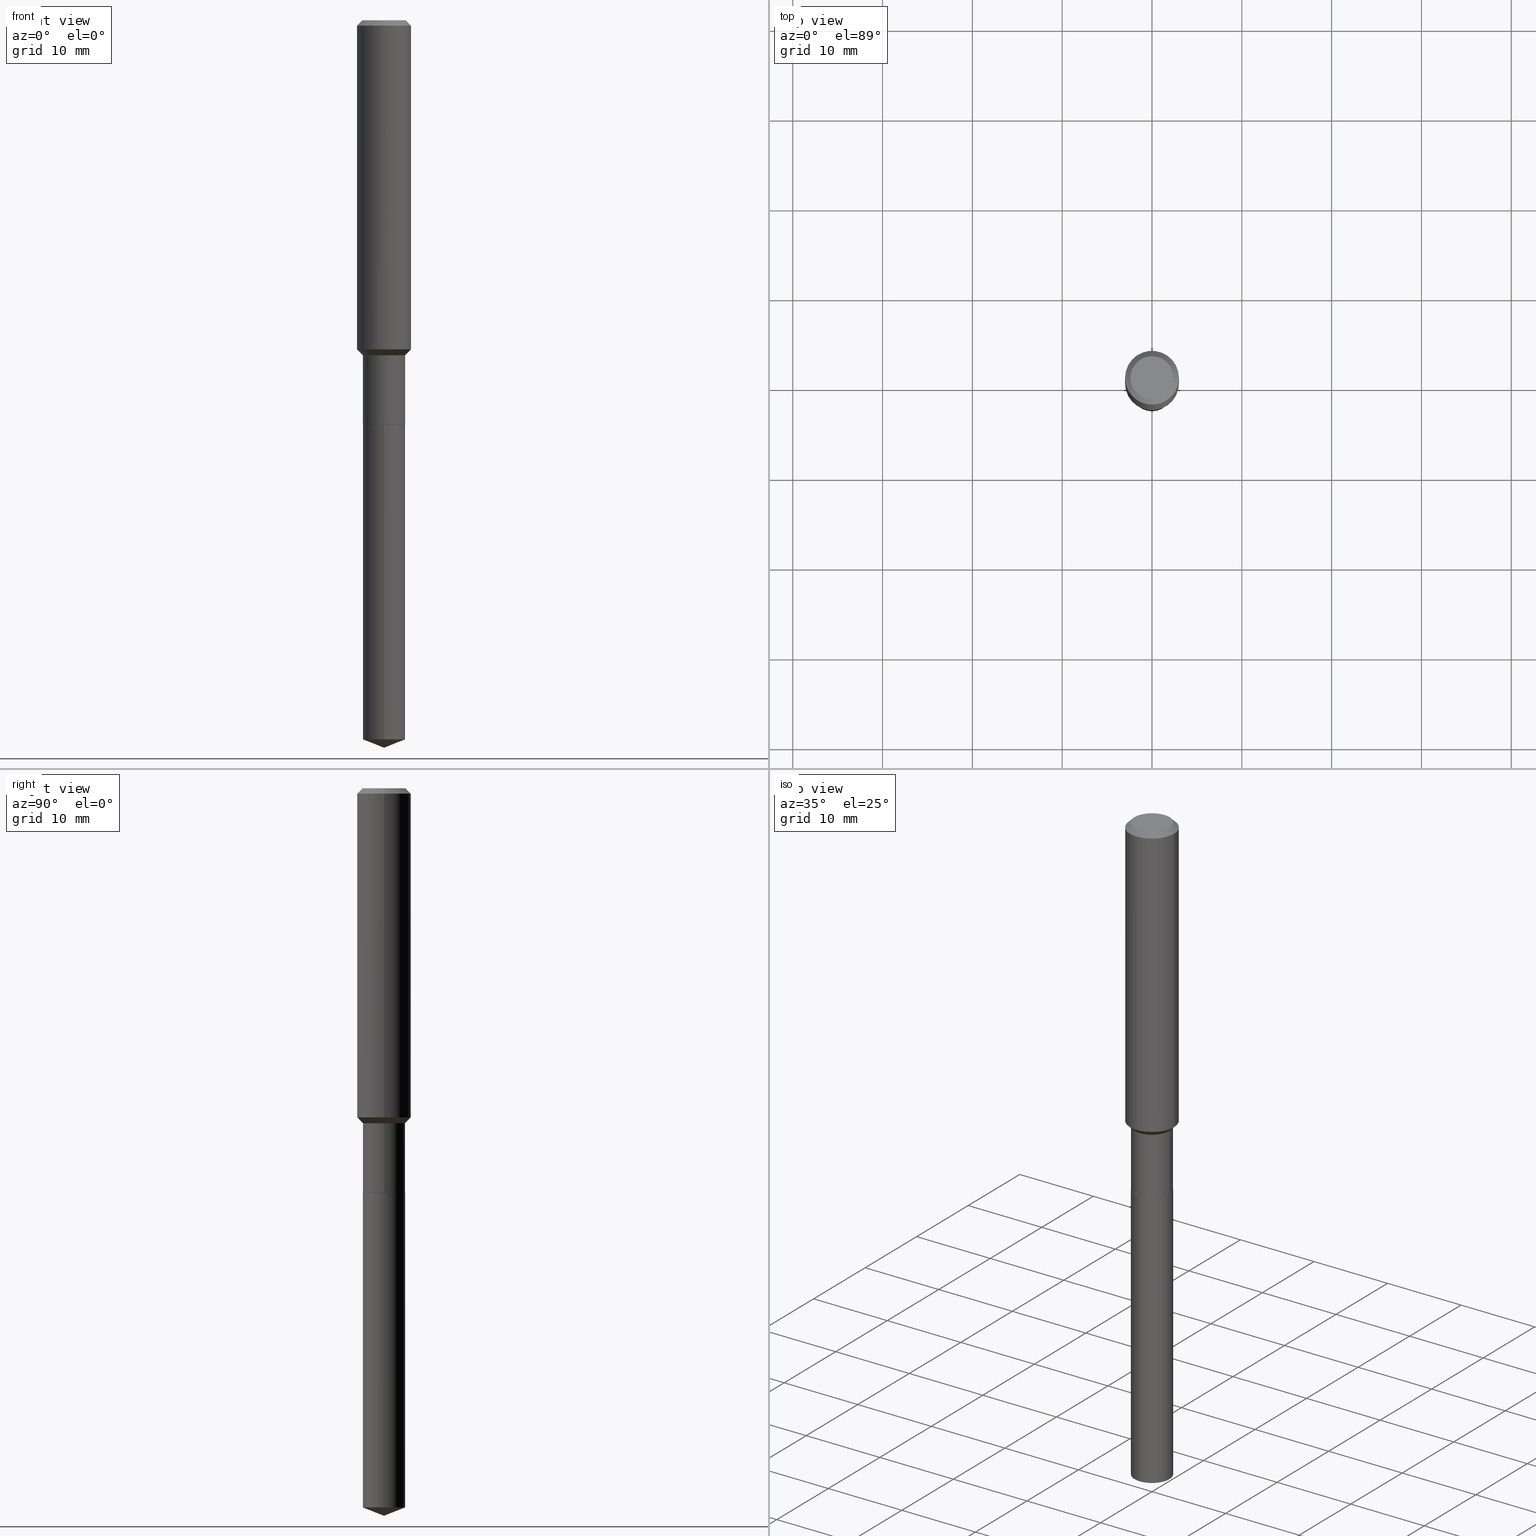
[diagram: canonical four-view strip — front | top / right | iso, engineering-drawing reading convention]
A machine part, canonical four-view strip (front | top / right | iso — engineering-drawing reading convention). The complete STEP part file that produces these views, byte-faithful:
ISO-10303-21;
HEADER;
FILE_DESCRIPTION (( 'STEP AP203' ),
    '1' );
FILE_NAME ('66623.STEP',
    '2024-04-25T02:15:34',
    ( '' ),
    ( '' ),
    'SwSTEP 2.0',
    'SolidWorks 2023',
    '' );
FILE_SCHEMA (( 'CONFIG_CONTROL_DESIGN' ));
ENDSEC;

DATA;
#1 = PERSON_AND_ORGANIZATION ( #298, #234 ) ;
#2 = CARTESIAN_POINT ( 'NONE',  ( 7.798695523167827716E-29, -1.113419722778666995E-14, -3.189000000000000501 ) ) ;
#3 = ADVANCED_FACE ( 'NONE', ( #284 ), #454, .T. ) ;
#4 = VECTOR ( 'NONE', #142, 39.37007874015748143 ) ;
#5 = AXIS2_PLACEMENT_3D ( 'NONE', #275, #430, #56 ) ;
#6 = CARTESIAN_POINT ( 'NONE',  ( 4.332637083918208108E-29, -6.185857488028402659E-15, -1.771700000000000719 ) ) ;
#7 = APPROVAL ( #489, 'UNSPECIFIED' ) ;
#8 = CYLINDRICAL_SURFACE ( 'NONE', #447, 0.09249999999999999889 ) ;
#9 = VERTEX_POINT ( 'NONE', #168 ) ;
#10 = DIRECTION ( 'NONE',  ( 1.000000000000000000, -6.982962677686266711E-15, 4.876176775795935232E-29 ) ) ;
#11 = VERTEX_POINT ( 'NONE', #357 ) ;
#12 = CIRCLE ( 'NONE', #258, 0.1181000000000001632 ) ;
#13 = CIRCLE ( 'NONE', #98, 0.09249999999999999889 ) ;
#14 = EDGE_CURVE ( 'NONE', #247, #245, #276, .T. ) ;
#15 = FACE_OUTER_BOUND ( 'NONE', #237, .T. ) ;
#16 = ORIENTED_EDGE ( 'NONE', *, *, #472, .F. ) ;
#17 = CC_DESIGN_PERSON_AND_ORGANIZATION_ASSIGNMENT ( #290, #257, ( #439 ) ) ;
#18 = CARTESIAN_POINT ( 'NONE',  ( 0.000000000000000000, 0.000000000000000000, 0.000000000000000000 ) ) ;
#19 = ORIENTED_EDGE ( 'NONE', *, *, #466, .F. ) ;
#20 = DIRECTION ( 'NONE',  ( -2.445468806185136597E-29, 3.491481338843145583E-15, 1.000000000000000000 ) ) ;
#21 = ORIENTED_EDGE ( 'NONE', *, *, #362, .F. ) ;
#22 = EDGE_CURVE ( 'NONE', #174, #342, #475, .T. ) ;
#23 = AXIS2_PLACEMENT_3D ( 'NONE', #299, #149, #186 ) ;
#24 = EDGE_LOOP ( 'NONE', ( #481, #322, #471, #55 ) ) ;
#25 = FACE_OUTER_BOUND ( 'NONE', #24, .T. ) ;
#26 = ORIENTED_EDGE ( 'NONE', *, *, #195, .F. ) ;
#27 = FACE_OUTER_BOUND ( 'NONE', #248, .T. ) ;
#28 = EDGE_LOOP ( 'NONE', ( #278, #467, #170, #58 ) ) ;
#29 = VECTOR ( 'NONE', #478, 39.37007874015748143 ) ;
#30 = ORIENTED_EDGE ( 'NONE', *, *, #150, .T. ) ;
#31 = DATE_AND_TIME ( #285, #328 ) ;
#32 = CARTESIAN_POINT ( 'NONE',  ( 4.332637083918206987E-29, -6.185857488028401870E-15, -1.771700000000000497 ) ) ;
#33 = PERSON_AND_ORGANIZATION ( #298, #234 ) ;
#34 = DIRECTION ( 'NONE',  ( -6.982962677686265922E-15, -1.000000000000000000, 2.953349182339743999E-15 ) ) ;
#35 = EDGE_CURVE ( 'NONE', #395, #247, #12, .T. ) ;
#36 = DATE_AND_TIME ( #219, #228 ) ;
#37 = DIRECTION ( 'NONE',  ( -6.982962677686265922E-15, -1.000000000000000000, 2.953349182339743999E-15 ) ) ;
#38 = VECTOR ( 'NONE', #199, 39.37007874015748143 ) ;
#39 = DATE_AND_TIME ( #73, #336 ) ;
#40 = PLANE ( 'NONE',  #376 ) ;
#41 = DESIGN_CONTEXT ( 'detailed design', #111, 'design' ) ;
#42 = CARTESIAN_POINT ( 'NONE',  ( -0.09249999999999998501, 6.572520305780925654E-16, -4.550014958485786769E-30 ) ) ;
#43 = DIRECTION ( 'NONE',  ( -6.982962677686265922E-15, -1.000000000000000000, 2.953349182339743999E-15 ) ) ;
#44 = VECTOR ( 'NONE', #151, 39.37007874015748143 ) ;
#45 = AXIS2_PLACEMENT_3D ( 'NONE', #272, #114, #87 ) ;
#46 = DIRECTION ( 'NONE',  ( -6.497071151882107214E-15, -0.9304175679820226863, 0.3665012267243020760 ) ) ;
#47 = ORIENTED_EDGE ( 'NONE', *, *, #57, .T. ) ;
#48 = DIRECTION ( 'NONE',  ( 1.000000000000000000, -6.982962677686269866E-15, 0.000000000000000000 ) ) ;
#49 = ORIENTED_EDGE ( 'NONE', *, *, #486, .F. ) ;
#50 = EDGE_CURVE ( 'NONE', #395, #297, #104, .T. ) ;
#51 = CARTESIAN_POINT ( 'NONE',  ( 0.09199999999999999845, -6.828290054375539638E-15, -1.771700000000000719 ) ) ;
#52 = VECTOR ( 'NONE', #295, 39.37007874015748143 ) ;
#53 = AXIS2_PLACEMENT_3D ( 'NONE', #203, #443, #101 ) ;
#54 = CYLINDRICAL_SURFACE ( 'NONE', #77, 0.1181000000000000799 ) ;
#55 = ORIENTED_EDGE ( 'NONE', *, *, #466, .T. ) ;
#56 = DIRECTION ( 'NONE',  ( -1.000000000000000000, 6.982962677686266711E-15, 0.000000000000000000 ) ) ;
#57 = EDGE_CURVE ( 'NONE', #469, #395, #95, .T. ) ;
#58 = ORIENTED_EDGE ( 'NONE', *, *, #262, .F. ) ;
#59 =( NAMED_UNIT ( * ) SI_UNIT ( $, .STERADIAN. ) SOLID_ANGLE_UNIT ( ) );
#60 = ORIENTED_EDGE ( 'NONE', *, *, #92, .F. ) ;
#61 = CIRCLE ( 'NONE', #409, 0.09249999999999999889 ) ;
#62 = LOCAL_TIME ( 22, 15, 34.00000000000000000, #370 ) ;
#63 = DIRECTION ( 'NONE',  ( -2.445468806185136597E-29, 3.491481338843145583E-15, 1.000000000000000000 ) ) ;
#64 = ORIENTED_EDGE ( 'NONE', *, *, #433, .T. ) ;
#65 = DIRECTION ( 'NONE',  ( -2.445468806185136597E-29, 3.491481338843145583E-15, 1.000000000000000000 ) ) ;
#66 = ORIENTED_EDGE ( 'NONE', *, *, #224, .T. ) ;
#67 = ORIENTED_EDGE ( 'NONE', *, *, #35, .F. ) ;
#68 = DATE_AND_TIME ( #294, #62 ) ;
#69 = VECTOR ( 'NONE', #135, 39.37007874015748143 ) ;
#70 = CARTESIAN_POINT ( 'NONE',  ( -0.1181000000000000799, 8.391509709326788873E-16, -5.809262341591047988E-30 ) ) ;
#71 = EDGE_CURVE ( 'NONE', #120, #9, #61, .T. ) ;
#72 = DIRECTION ( 'NONE',  ( 1.000000000000000000, -6.982962677686266711E-15, 0.000000000000000000 ) ) ;
#73 = CALENDAR_DATE ( 2024, 24, 4 ) ;
#74 = DIRECTION ( 'NONE',  ( -2.445468806185136597E-29, 3.491481338843145583E-15, 1.000000000000000000 ) ) ;
#75 = DIRECTION ( 'NONE',  ( 1.000000000000000000, -6.982962677686265133E-15, 0.000000000000000000 ) ) ;
#76 = CLOSED_SHELL ( 'NONE', ( #398, #200, #372, #181, #301 ) ) ;
#77 = AXIS2_PLACEMENT_3D ( 'NONE', #309, #458, #119 ) ;
#78 = EDGE_CURVE ( 'NONE', #245, #297, #155, .T. ) ;
#79 = DIRECTION ( 'NONE',  ( -2.445468806185136597E-29, 3.491481338843145583E-15, 1.000000000000000000 ) ) ;
#80 = FACE_OUTER_BOUND ( 'NONE', #384, .T. ) ;
#81 = DIRECTION ( 'NONE',  ( -2.445498752953222356E-29, 3.491438453366782686E-15, 1.000000000000000000 ) ) ;
#82 = ORIENTED_EDGE ( 'NONE', *, *, #340, .T. ) ;
#83 = AXIS2_PLACEMENT_3D ( 'NONE', #392, #167, #312 ) ;
#84 = LINE ( 'NONE', #229, #133 ) ;
#85 = EDGE_CURVE ( 'NONE', #214, #131, #343, .T. ) ;
#86 = ORIENTED_EDGE ( 'NONE', *, *, #472, .T. ) ;
#87 = DIRECTION ( 'NONE',  ( 1.000000000000000000, -6.982962677686267499E-15, 4.875432709231658792E-29 ) ) ;
#88 = ORIENTED_EDGE ( 'NONE', *, *, #50, .F. ) ;
#89 = FACE_OUTER_BOUND ( 'NONE', #316, .T. ) ;
#90 = ORIENTED_EDGE ( 'NONE', *, *, #332, .T. ) ;
#91 = AXIS2_PLACEMENT_3D ( 'NONE', #483, #413, #490 ) ;
#92 = EDGE_CURVE ( 'NONE', #417, #469, #217, .T. ) ;
#93 = CARTESIAN_POINT ( 'NONE',  ( -0.09447999999999998066, 7.009847083995354710E-16, -1.928573779297727792E-17 ) ) ;
#94 = ORIENTED_EDGE ( 'NONE', *, *, #340, .F. ) ;
#95 = LINE ( 'NONE', #391, #38 ) ;
#96 = EDGE_LOOP ( 'NONE', ( #422, #86, #339, #67 ) ) ;
#97 = CONICAL_SURFACE ( 'NONE', #139, 0.1180999999999999966, 0.7853981633974460586 ) ;
#98 = AXIS2_PLACEMENT_3D ( 'NONE', #240, #65, #206 ) ;
#99 = ORIENTED_EDGE ( 'NONE', *, *, #187, .F. ) ;
#100 = EDGE_CURVE ( 'NONE', #431, #245, #141, .T. ) ;
#101 = DIRECTION ( 'NONE',  ( 1.000000000000000000, -6.982962677686267499E-15, 4.875432709231658792E-29 ) ) ;
#102 = DIRECTION ( 'NONE',  ( 1.000000000000000000, -6.982962677686263555E-15, 0.000000000000000000 ) ) ;
#103 = APPROVAL_ROLE ( '' ) ;
#104 = LINE ( 'NONE', #70, #164 ) ;
#105 = EDGE_CURVE ( 'NONE', #417, #346, #201, .T. ) ;
#106 = AXIS2_PLACEMENT_3D ( 'NONE', #116, #303, #337 ) ;
#107 = CARTESIAN_POINT ( 'NONE',  ( -6.459240476859363031E-16, -0.09250000000000618838, -1.771700000000000053 ) ) ;
#108 = DIRECTION ( 'NONE',  ( -6.982962677686265922E-15, -1.000000000000000000, 3.498627837350058654E-15 ) ) ;
#109 = MANIFOLD_SOLID_BREP ( 'Body-Move/Copy2[1]', #76 ) ;
#110 = CARTESIAN_POINT ( 'NONE',  ( 3.590681848121637088E-29, -5.126542049823392484E-15, -1.468300000000000605 ) ) ;
#111 = APPLICATION_CONTEXT ( 'configuration controlled 3d designs of mechanical parts and assemblies' ) ;
#112 = DIRECTION ( 'NONE',  ( -2.445468806185136597E-29, 3.491481338843145583E-15, 1.000000000000000000 ) ) ;
#113 = DIRECTION ( 'NONE',  ( -2.445498752953222356E-29, 3.491438453366782686E-15, 1.000000000000000000 ) ) ;
#114 = DIRECTION ( 'NONE',  ( -2.445468806185136597E-29, 3.491481338843145583E-15, 1.000000000000000000 ) ) ;
#115 = ORIENTED_EDGE ( 'NONE', *, *, #105, .T. ) ;
#116 = CARTESIAN_POINT ( 'NONE',  ( 4.332637083918206987E-29, -6.185857488028401870E-15, -1.771700000000000497 ) ) ;
#117 = EDGE_LOOP ( 'NONE', ( #60, #115, #304, #16 ) ) ;
#118 =( GEOMETRIC_REPRESENTATION_CONTEXT ( 3 ) GLOBAL_UNCERTAINTY_ASSIGNED_CONTEXT ( ( #261 ) ) GLOBAL_UNIT_ASSIGNED_CONTEXT ( ( #281, #129, #59 ) ) REPRESENTATION_CONTEXT ( 'NONE', 'WORKASPACE' ) );
#119 = DIRECTION ( 'NONE',  ( 1.000000000000000000, -6.982962677686266711E-15, 4.876176775795936353E-29 ) ) ;
#120 = VERTEX_POINT ( 'NONE', #107 ) ;
#121 = CYLINDRICAL_SURFACE ( 'NONE', #345, 0.1181000000000000799 ) ;
#122 = CARTESIAN_POINT ( 'NONE',  ( 4.332637083918206987E-29, -6.185857488028401870E-15, -1.771700000000000497 ) ) ;
#123 = CIRCLE ( 'NONE', #401, 0.09249999999999997113 ) ;
#124 = CIRCLE ( 'NONE', #45, 0.09447999999999998066 ) ;
#125 = LENGTH_MEASURE_WITH_UNIT ( LENGTH_MEASURE( 0.02539999999999999897 ), #389 );
#126 = ORIENTED_EDGE ( 'NONE', *, *, #253, .F. ) ;
#127 = DIRECTION ( 'NONE',  ( 0.000000000000000000, 0.000000000000000000, 1.000000000000000000 ) ) ;
#128 = ORIENTED_EDGE ( 'NONE', *, *, #85, .F. ) ;
#129 =( NAMED_UNIT ( * ) PLANE_ANGLE_UNIT ( ) SI_UNIT ( $, .RADIAN. ) );
#130 = ADVANCED_FACE ( 'NONE', ( #286 ), #97, .T. ) ;
#131 = VERTEX_POINT ( 'NONE', #176 ) ;
#132 = AXIS2_PLACEMENT_3D ( 'NONE', #177, #180, #72 ) ;
#133 = VECTOR ( 'NONE', #230, 39.37007874015748143 ) ;
#134 = PERSON_AND_ORGANIZATION ( #298, #234 ) ;
#135 = DIRECTION ( 'NONE',  ( 6.611014441532053178E-15, 0.9304175679820252398, 0.3665012267242954702 ) ) ;
#136 = ORIENTED_EDGE ( 'NONE', *, *, #22, .T. ) ;
#137 = COORDINATED_UNIVERSAL_TIME_OFFSET ( 5, 0, .BEHIND. ) ;
#138 = CARTESIAN_POINT ( 'NONE',  ( 6.589800474479064171E-30, -1.144674345582729073E-14, -1.771700000000000719 ) ) ;
#139 = AXIS2_PLACEMENT_3D ( 'NONE', #445, #252, #223 ) ;
#140 = VECTOR ( 'NONE', #338, 39.37007874015748143 ) ;
#141 = LINE ( 'NONE', #334, #485 ) ;
#142 = DIRECTION ( 'NONE',  ( -2.445468806185136877E-29, 3.491481338843145188E-15, 1.000000000000000000 ) ) ;
#143 = APPROVAL_DATE_TIME ( #68, #420 ) ;
#144 = PRODUCT_DEFINITION ( 'UNKNOWN', '', #439, #41 ) ;
#145 = CARTESIAN_POINT ( 'NONE',  ( 7.709536515616339787E-29, -1.100705664617363653E-14, -3.152563281005618112 ) ) ;
#146 = APPROVAL_ROLE ( '' ) ;
#147 = CYLINDRICAL_SURFACE ( 'NONE', #387, 0.09249999999999999889 ) ;
#148 = AXIS2_PLACEMENT_3D ( 'NONE', #236, #127, #277 ) ;
#149 = DIRECTION ( 'NONE',  ( -2.445498752953222356E-29, 3.491438453366782686E-15, 1.000000000000000000 ) ) ;
#150 = EDGE_CURVE ( 'NONE', #342, #191, #220, .T. ) ;
#151 = DIRECTION ( 'NONE',  ( 0.7071067811864267805, -2.468850131080992517E-15, 0.7071067811866682540 ) ) ;
#152 = ORIENTED_EDGE ( 'NONE', *, *, #348, .F. ) ;
#153 = PLANE ( 'NONE',  #106 ) ;
#154 = ORIENTED_EDGE ( 'NONE', *, *, #195, .T. ) ;
#155 = CIRCLE ( 'NONE', #132, 0.1180999999999999966 ) ;
#156 = CARTESIAN_POINT ( 'NONE',  ( -8.848083599624647937E-28, 1.263239336174787439E-13, 36.18107874015748138 ) ) ;
#157 = CC_DESIGN_PERSON_AND_ORGANIZATION_ASSIGNMENT ( #134, #480, ( #315 ) ) ;
#158 = EDGE_LOOP ( 'NONE', ( #66, #47, #99, #400 ) ) ;
#159 = CARTESIAN_POINT ( 'NONE',  ( 0.1180999999999999966, -9.071566814582237199E-16, -0.02362000000000014088 ) ) ;
#160 = CC_DESIGN_PERSON_AND_ORGANIZATION_ASSIGNMENT ( #33, #367, ( #144 ) ) ;
#161 = ORIENTED_EDGE ( 'NONE', *, *, #100, .T. ) ;
#162 = DIRECTION ( 'NONE',  ( -2.445468806185136597E-29, 3.491481338843145583E-15, 1.000000000000000000 ) ) ;
#163 = DIRECTION ( 'NONE',  ( -2.445468806185136877E-29, 3.491481338843145188E-15, 1.000000000000000000 ) ) ;
#164 = VECTOR ( 'NONE', #163, 39.37007874015748143 ) ;
#165 = ORIENTED_EDGE ( 'NONE', *, *, #14, .T. ) ;
#166 = ADVANCED_FACE ( 'NONE', ( #291 ), #365, .F. ) ;
#167 = DIRECTION ( 'NONE',  ( -2.445468806185136597E-29, 3.491481338843145583E-15, 1.000000000000000000 ) ) ;
#168 = CARTESIAN_POINT ( 'NONE',  ( 6.572520305781699724E-16, 0.09249999999999382327, -1.771700000000000719 ) ) ;
#169 = CARTESIAN_POINT ( 'NONE',  ( 0.09447999999999998066, -7.704367267948738690E-16, -1.928573779296752193E-17 ) ) ;
#170 = ORIENTED_EDGE ( 'NONE', *, *, #433, .F. ) ;
#171 = CIRCLE ( 'NONE', #91, 0.09249999999999999889 ) ;
#172 = CIRCLE ( 'NONE', #83, 0.09249999999999997113 ) ;
#173 = APPLICATION_CONTEXT ( 'configuration controlled 3d designs of mechanical parts and assemblies' ) ;
#174 = VERTEX_POINT ( 'NONE', #2 ) ;
#175 = APPROVAL_DATE_TIME ( #31, #7 ) ;
#176 = CARTESIAN_POINT ( 'NONE',  ( -0.09199999999999999845, -5.529508943954998706E-15, -1.771700000000000719 ) ) ;
#177 = CARTESIAN_POINT ( 'NONE',  ( 5.776197320209327532E-31, -8.246878922347559293E-17, -0.02362000000000014088 ) ) ;
#178 = SECURITY_CLASSIFICATION_LEVEL ( 'unclassified' ) ;
#179 = VECTOR ( 'NONE', #347, 39.37007874015748143 ) ;
#180 = DIRECTION ( 'NONE',  ( -2.445468806185136597E-29, 3.491481338843145583E-15, 1.000000000000000000 ) ) ;
#181 = ADVANCED_FACE ( 'NONE', ( #449 ), #147, .T. ) ;
#182 = COORDINATED_UNIVERSAL_TIME_OFFSET ( 5, 0, .BEHIND. ) ;
#183 = FACE_OUTER_BOUND ( 'NONE', #350, .T. ) ;
#184 = CARTESIAN_POINT ( 'NONE',  ( 4.331414349515115307E-29, -6.184111747358981944E-15, -1.771200000000000552 ) ) ;
#185 = CIRCLE ( 'NONE', #23, 0.09249999999999999889 ) ;
#186 = DIRECTION ( 'NONE',  ( -6.982962677686265922E-15, -1.000000000000000000, 5.906698364679487997E-15 ) ) ;
#187 = EDGE_CURVE ( 'NONE', #247, #395, #226, .T. ) ;
#188 = CARTESIAN_POINT ( 'NONE',  ( -0.1181000000000001632, -4.198009156616327782E-15, -1.442700000000000538 ) ) ;
#189 = ORIENTED_EDGE ( 'NONE', *, *, #311, .F. ) ;
#190 = LINE ( 'NONE', #268, #419 ) ;
#191 = VERTEX_POINT ( 'NONE', #371 ) ;
#192 = CARTESIAN_POINT ( 'NONE',  ( -0.1180999999999999966, -1.720663487453561930E-15, -0.02362000000000014088 ) ) ;
#193 = ORIENTED_EDGE ( 'NONE', *, *, #253, .T. ) ;
#194 = VECTOR ( 'NONE', #46, 39.37007874015748143 ) ;
#195 = EDGE_CURVE ( 'NONE', #9, #120, #171, .T. ) ;
#196 = CARTESIAN_POINT ( 'NONE',  ( -0.1180999999999999966, 7.422191030112725094E-16, -0.02362000000000014088 ) ) ;
#197 = CARTESIAN_POINT ( 'NONE',  ( 3.590681848121637088E-29, -5.126542049823392484E-15, -1.468300000000000605 ) ) ;
#198 = ORIENTED_EDGE ( 'NONE', *, *, #50, .T. ) ;
#199 = DIRECTION ( 'NONE',  ( -0.7071067811865484609, 7.493145998870357316E-15, 0.7071067811865465735 ) ) ;
#200 = ADVANCED_FACE ( 'NONE', ( #80 ), #327, .T. ) ;
#201 = CIRCLE ( 'NONE', #302, 0.09249999999999999889 ) ;
#202 = CONICAL_SURFACE ( 'NONE', #314, 0.09199999999999999845, 0.7853981633972775267 ) ;
#203 = CARTESIAN_POINT ( 'NONE',  ( 4.716267017698007905E-46, -6.733579360998555036E-32, -1.928573779297252010E-17 ) ) ;
#204 = EDGE_LOOP ( 'NONE', ( #88, #310, #165, #19 ) ) ;
#205 = CC_DESIGN_DATE_AND_TIME_ASSIGNMENT ( #452, #448, ( #221 ) ) ;
#206 = DIRECTION ( 'NONE',  ( 1.000000000000000000, -6.982962677686265133E-15, 0.000000000000000000 ) ) ;
#207 = ORIENTED_EDGE ( 'NONE', *, *, #324, .F. ) ;
#208 = ADVANCED_FACE ( 'NONE', ( #484 ), #426, .T. ) ;
#209 = CARTESIAN_POINT ( 'NONE',  ( -0.09249999999999999889, -4.998074868013093170E-15, -1.771200000000000552 ) ) ;
#210 = ORIENTED_EDGE ( 'NONE', *, *, #71, .T. ) ;
#211 = AXIS2_PLACEMENT_3D ( 'NONE', #254, #74, #368 ) ;
#212 = CONICAL_SURFACE ( 'NONE', #274, 99.94676754583841216, 1.195550537616114184 ) ;
#213 = PERSON_AND_ORGANIZATION ( #298, #234 ) ;
#214 = VERTEX_POINT ( 'NONE', #330 ) ;
#215 = DIRECTION ( 'NONE',  ( 1.000000000000000000, -6.982962677686269866E-15, 0.000000000000000000 ) ) ;
#216 = SHAPE_DEFINITION_REPRESENTATION ( #415, #381 ) ;
#217 = LINE ( 'NONE', #42, #52 ) ;
#218 = EDGE_CURVE ( 'NONE', #346, #11, #488, .T. ) ;
#219 = CALENDAR_DATE ( 2024, 24, 4 ) ;
#220 = CIRCLE ( 'NONE', #446, 0.09249999999999999889 ) ;
#221 = SECURITY_CLASSIFICATION ( '', '', #178 ) ;
#222 = DIRECTION ( 'NONE',  ( -2.438088387897960049E-29, 3.491481338843145188E-15, 1.000000000000000000 ) ) ;
#223 = DIRECTION ( 'NONE',  ( -1.000000000000000000, 6.982962677686266711E-15, 0.000000000000000000 ) ) ;
#224 = EDGE_CURVE ( 'NONE', #11, #469, #123, .T. ) ;
#225 = DIRECTION ( 'NONE',  ( -2.445498752953222356E-29, 3.491438453366782686E-15, 1.000000000000000000 ) ) ;
#226 = CIRCLE ( 'NONE', #386, 0.1181000000000001632 ) ;
#227 = DIRECTION ( 'NONE',  ( 1.000000000000000000, -6.982962677686266711E-15, 4.876176775795936353E-29 ) ) ;
#228 = LOCAL_TIME ( 22, 15, 34.00000000000000000, #182 ) ;
#229 = CARTESIAN_POINT ( 'NONE',  ( -0.09199999999999999845, -5.532158171129110696E-15, -1.771700000000000719 ) ) ;
#230 = DIRECTION ( 'NONE',  ( -0.7071067811864267805, 7.493145998869918709E-15, 0.7071067811866682540 ) ) ;
#231 = ORIENTED_EDGE ( 'NONE', *, *, #362, .T. ) ;
#232 = ADVANCED_FACE ( 'NONE', ( #183 ), #40, .F. ) ;
#233 = CARTESIAN_POINT ( 'NONE',  ( 0.09249999999999997113, -5.772466097509371681E-15, -1.468300000000000605 ) ) ;
#234 = ORGANIZATION ( 'UNSPECIFIED', 'UNSPECIFIED', '' ) ;
#235 = APPROVAL_PERSON_ORGANIZATION ( #364, #482, #292 ) ;
#236 = CARTESIAN_POINT ( 'NONE',  ( 0.000000000000000000, 0.000000000000000000, 0.000000000000000000 ) ) ;
#237 = EDGE_LOOP ( 'NONE', ( #438, #231, #359 ) ) ;
#238 = ADVANCED_FACE ( 'NONE', ( #465 ), #264, .T. ) ;
#239 = CARTESIAN_POINT ( 'NONE',  ( 7.798696453656895021E-29, -1.113419722778667310E-14, -3.189000000000000501 ) ) ;
#240 = CARTESIAN_POINT ( 'NONE',  ( 4.331414349515115307E-29, -6.184111747358981944E-15, -1.771200000000000552 ) ) ;
#241 = CC_DESIGN_PERSON_AND_ORGANIZATION_ASSIGNMENT ( #411, #251, ( #221 ) ) ;
#242 = EDGE_LOOP ( 'NONE', ( #193, #390, #425, #393 ) ) ;
#243 = CC_DESIGN_APPROVAL ( #420, ( #439 ) ) ;
#244 = FACE_OUTER_BOUND ( 'NONE', #117, .T. ) ;
#245 = VERTEX_POINT ( 'NONE', #159 ) ;
#246 = CARTESIAN_POINT ( 'NONE',  ( 6.572520305781358542E-16, 0.09249999999999382327, -1.771700000000000719 ) ) ;
#247 = VERTEX_POINT ( 'NONE', #423 ) ;
#248 = EDGE_LOOP ( 'NONE', ( #152, #429, #307, #363 ) ) ;
#249 = AXIS2_PLACEMENT_3D ( 'NONE', #382, #341, #10 ) ;
#250 = VECTOR ( 'NONE', #470, 39.37007874015748143 ) ;
#251 = PERSON_AND_ORGANIZATION_ROLE ( 'classification_officer' ) ;
#252 = DIRECTION ( 'NONE',  ( 2.445468806185136597E-29, -3.491481338843145583E-15, -1.000000000000000000 ) ) ;
#253 = EDGE_CURVE ( 'NONE', #191, #342, #185, .T. ) ;
#254 = CARTESIAN_POINT ( 'NONE',  ( 4.332637083918208108E-29, -6.185857488028402659E-15, -1.771700000000000719 ) ) ;
#255 = APPROVAL_STATUS ( 'not_yet_approved' ) ;
#256 = DIRECTION ( 'NONE',  ( -2.445468806185136597E-29, 3.491481338843145583E-15, 1.000000000000000000 ) ) ;
#257 = PERSON_AND_ORGANIZATION_ROLE ( 'creator' ) ;
#258 = AXIS2_PLACEMENT_3D ( 'NONE', #282, #474, #102 ) ;
#259 = CIRCLE ( 'NONE', #53, 0.09447999999999998066 ) ;
#260 = DIRECTION ( 'NONE',  ( 2.438088387897960049E-29, -3.491481338843145188E-15, -1.000000000000000000 ) ) ;
#261 = UNCERTAINTY_MEASURE_WITH_UNIT (LENGTH_MEASURE( 1.000000000000000082E-05 ), #281, 'distance_accuracy_value', 'NONE');
#262 = EDGE_CURVE ( 'NONE', #214, #346, #296, .T. ) ;
#263 = DIRECTION ( 'NONE',  ( 1.000000000000000000, -6.982962677686263555E-15, 0.000000000000000000 ) ) ;
#264 = CYLINDRICAL_SURFACE ( 'NONE', #249, 0.09249999999999998501 ) ;
#265 = ORIENTED_EDGE ( 'NONE', *, *, #218, .F. ) ;
#266 = DIRECTION ( 'NONE',  ( -2.445468806185136597E-29, 3.491481338843145583E-15, 1.000000000000000000 ) ) ;
#267 = ORIENTED_EDGE ( 'NONE', *, *, #92, .T. ) ;
#268 = CARTESIAN_POINT ( 'NONE',  ( -6.459240476859363031E-16, -0.09250000000000618838, -1.771700000000000053 ) ) ;
#269 = EDGE_LOOP ( 'NONE', ( #279, #198, #460, #320 ) ) ;
#270 = DIRECTION ( 'NONE',  ( -2.445468806185136597E-29, 3.491481338843145583E-15, 1.000000000000000000 ) ) ;
#271 = VERTEX_POINT ( 'NONE', #93 ) ;
#272 = CARTESIAN_POINT ( 'NONE',  ( 4.716267017698007905E-46, -6.733579360998555036E-32, -1.928573779297252010E-17 ) ) ;
#273 = AXIS2_PLACEMENT_3D ( 'NONE', #326, #225, #108 ) ;
#274 = AXIS2_PLACEMENT_3D ( 'NONE', #156, #81, #306 ) ;
#275 = CARTESIAN_POINT ( 'NONE',  ( 5.776197320209327532E-31, -8.246878922347559293E-17, -0.02362000000000014088 ) ) ;
#276 = LINE ( 'NONE', #441, #29 ) ;
#277 = DIRECTION ( 'NONE',  ( 1.000000000000000000, 0.000000000000000000, 0.000000000000000000 ) ) ;
#278 = ORIENTED_EDGE ( 'NONE', *, *, #85, .T. ) ;
#279 = ORIENTED_EDGE ( 'NONE', *, *, #187, .T. ) ;
#280 = CC_DESIGN_APPROVAL ( #7, ( #221 ) ) ;
#281 =( CONVERSION_BASED_UNIT ( 'INCH', #125 ) LENGTH_UNIT ( ) NAMED_UNIT ( #308 ) );
#282 = CARTESIAN_POINT ( 'NONE',  ( 3.528077846683297760E-29, -5.037160127549007557E-15, -1.442700000000000538 ) ) ;
#283 = DIRECTION ( 'NONE',  ( 1.000000000000000000, -6.982962677686266711E-15, 4.876176775795935232E-29 ) ) ;
#284 = FACE_OUTER_BOUND ( 'NONE', #158, .T. ) ;
#285 = CALENDAR_DATE ( 2024, 24, 4 ) ;
#286 = FACE_OUTER_BOUND ( 'NONE', #352, .T. ) ;
#287 = CIRCLE ( 'NONE', #418, 0.09199999999999999845 ) ;
#288 = APPLICATION_PROTOCOL_DEFINITION ( 'international standard', 'config_control_design', 1994, #111 ) ;
#289 = DIRECTION ( 'NONE',  ( -2.445468806185136597E-29, 3.491481338843145583E-15, 1.000000000000000000 ) ) ;
#290 = PERSON_AND_ORGANIZATION ( #298, #234 ) ;
#291 = FACE_OUTER_BOUND ( 'NONE', #434, .T. ) ;
#292 = APPROVAL_ROLE ( '' ) ;
#293 = CARTESIAN_POINT ( 'NONE',  ( 0.09249999999999998501, -6.459240476859795918E-16, 4.510463517611239347E-30 ) ) ;
#294 = CALENDAR_DATE ( 2024, 24, 4 ) ;
#295 = DIRECTION ( 'NONE',  ( -2.445468806185136877E-29, 3.491481338843145188E-15, 1.000000000000000000 ) ) ;
#296 = LINE ( 'NONE', #51, #44 ) ;
#297 = VERTEX_POINT ( 'NONE', #192 ) ;
#298 = PERSON ( 'UNSPECIFIED', 'UNSPECIFIED', 'UNSPECIFIED', ('UNSPECIFIED'), ('UNSPECIFIED'), ('UNSPECIFIED') ) ;
#299 = CARTESIAN_POINT ( 'NONE',  ( 7.709536515616339787E-29, -1.100705664617363653E-14, -3.152563281005618112 ) ) ;
#300 = ORIENTED_EDGE ( 'NONE', *, *, #477, .T. ) ;
#301 = ADVANCED_FACE ( 'NONE', ( #89 ), #153, .F. ) ;
#302 = AXIS2_PLACEMENT_3D ( 'NONE', #184, #289, #75 ) ;
#303 = DIRECTION ( 'NONE',  ( 2.445498752953222076E-29, -3.491438453366782686E-15, -1.000000000000000000 ) ) ;
#304 = ORIENTED_EDGE ( 'NONE', *, *, #218, .T. ) ;
#305 = CC_DESIGN_DATE_AND_TIME_ASSIGNMENT ( #36, #399, ( #144 ) ) ;
#306 = DIRECTION ( 'NONE',  ( -6.982962677686265922E-15, -1.000000000000000000, 3.498627837350058654E-15 ) ) ;
#307 = ORIENTED_EDGE ( 'NONE', *, *, #262, .T. ) ;
#308 = DIMENSIONAL_EXPONENTS ( 1.000000000000000000, 0.000000000000000000, 0.000000000000000000, 0.000000000000000000, 0.000000000000000000, 0.000000000000000000, 0.000000000000000000 ) ;
#309 = CARTESIAN_POINT ( 'NONE',  ( 0.000000000000000000, 0.000000000000000000, 0.000000000000000000 ) ) ;
#310 = ORIENTED_EDGE ( 'NONE', *, *, #35, .T. ) ;
#311 = EDGE_CURVE ( 'NONE', #131, #214, #287, .T. ) ;
#312 = DIRECTION ( 'NONE',  ( 1.000000000000000000, -6.982962677686266711E-15, 0.000000000000000000 ) ) ;
#313 = ORIENTED_EDGE ( 'NONE', *, *, #224, .F. ) ;
#314 = AXIS2_PLACEMENT_3D ( 'NONE', #349, #20, #354 ) ;
#315 = PRODUCT ( '66623', '66623', '', ( #432 ) ) ;
#316 = EDGE_LOOP ( 'NONE', ( #210, #154 ) ) ;
#317 = DIRECTION ( 'NONE',  ( -2.445468806185136597E-29, 3.491481338843145583E-15, 1.000000000000000000 ) ) ;
#318 = DIRECTION ( 'NONE',  ( -2.445468806185136597E-29, 3.491481338843145583E-15, 1.000000000000000000 ) ) ;
#319 = ADVANCED_FACE ( 'NONE', ( #416 ), #54, .T. ) ;
#320 = ORIENTED_EDGE ( 'NONE', *, *, #14, .F. ) ;
#321 = CYLINDRICAL_SURFACE ( 'NONE', #377, 0.09249999999999998501 ) ;
#322 = ORIENTED_EDGE ( 'NONE', *, *, #477, .F. ) ;
#323 = DIRECTION ( 'NONE',  ( -2.445498752953222356E-29, 3.491438453366782686E-15, 1.000000000000000000 ) ) ;
#324 = EDGE_CURVE ( 'NONE', #271, #297, #421, .T. ) ;
#325 = APPROVAL_DATE_TIME ( #39, #482 ) ;
#326 = CARTESIAN_POINT ( 'NONE',  ( -8.848083599624647937E-28, 1.263239336174787439E-13, 36.18107874015748138 ) ) ;
#327 = CONICAL_SURFACE ( 'NONE', #273, 99.94676754583841216, 1.195550537616114184 ) ;
#328 = LOCAL_TIME ( 22, 15, 34.00000000000000000, #137 ) ;
#329 = PERSON_AND_ORGANIZATION_ROLE ( 'design_supplier' ) ;
#330 = CARTESIAN_POINT ( 'NONE',  ( 0.09199999999999999845, -6.828290054375539638E-15, -1.771700000000000719 ) ) ;
#331 = COORDINATED_UNIVERSAL_TIME_OFFSET ( 5, 0, .BEHIND. ) ;
#332 = EDGE_CURVE ( 'NONE', #191, #120, #190, .T. ) ;
#333 = CARTESIAN_POINT ( 'NONE',  ( 2.358133508849003952E-46, -3.366789680499277518E-32, -9.642868896486260050E-18 ) ) ;
#334 = CARTESIAN_POINT ( 'NONE',  ( 0.1180999999999999966, -8.926936027602933910E-16, -0.02362000000000014088 ) ) ;
#335 = AXIS2_PLACEMENT_3D ( 'NONE', #138, #222, #404 ) ;
#336 = LOCAL_TIME ( 22, 15, 34.00000000000000000, #361 ) ;
#337 = DIRECTION ( 'NONE',  ( 6.982962677686265922E-15, 1.000000000000000000, -3.491438453366782686E-15 ) ) ;
#338 = DIRECTION ( 'NONE',  ( 0.7071067811865484609, -2.468850131082266921E-15, 0.7071067811865465735 ) ) ;
#339 = ORIENTED_EDGE ( 'NONE', *, *, #385, .T. ) ;
#340 = EDGE_CURVE ( 'NONE', #431, #271, #124, .T. ) ;
#341 = DIRECTION ( 'NONE',  ( -2.445468806185136597E-29, 3.491481338843145583E-15, 1.000000000000000000 ) ) ;
#342 = VERTEX_POINT ( 'NONE', #375 ) ;
#343 = CIRCLE ( 'NONE', #369, 0.09199999999999999845 ) ;
#344 = CARTESIAN_POINT ( 'NONE',  ( 7.798589409789792218E-29, -1.113434918818361475E-14, -3.189000000000000501 ) ) ;
#345 = AXIS2_PLACEMENT_3D ( 'NONE', #18, #270, #227 ) ;
#346 = VERTEX_POINT ( 'NONE', #468 ) ;
#347 = DIRECTION ( 'NONE',  ( -0.7071067811865459074, 2.468850131082240100E-15, -0.7071067811865491270 ) ) ;
#348 = EDGE_CURVE ( 'NONE', #131, #417, #84, .T. ) ;
#349 = CARTESIAN_POINT ( 'NONE',  ( 4.332637083918208108E-29, -6.185857488028402659E-15, -1.771700000000000719 ) ) ;
#350 = EDGE_LOOP ( 'NONE', ( #300, #82 ) ) ;
#351 = APPLICATION_PROTOCOL_DEFINITION ( 'international standard', 'config_control_design', 1994, #173 ) ;
#352 = EDGE_LOOP ( 'NONE', ( #94, #161, #464, #207 ) ) ;
#353 = AXIS2_PLACEMENT_3D ( 'NONE', #436, #162, #476 ) ;
#354 = DIRECTION ( 'NONE',  ( 1.000000000000000000, -6.982962677686269866E-15, 0.000000000000000000 ) ) ;
#355 = CARTESIAN_POINT ( 'NONE',  ( 3.590681848121637088E-29, -5.126542049823392484E-15, -1.468300000000000605 ) ) ;
#356 = DIRECTION ( 'NONE',  ( 1.000000000000000000, -6.982962677686266711E-15, 0.000000000000000000 ) ) ;
#357 = CARTESIAN_POINT ( 'NONE',  ( 0.09249999999999997113, -5.772466097509371681E-15, -1.468300000000000605 ) ) ;
#358 = CARTESIAN_POINT ( 'NONE',  ( -0.09249999999999997113, -4.998074868013093170E-15, -1.468300000000000605 ) ) ;
#359 = ORIENTED_EDGE ( 'NONE', *, *, #150, .F. ) ;
#360 = CONICAL_SURFACE ( 'NONE', #410, 0.09249999999999997113, 0.7853981633974496113 ) ;
#361 = COORDINATED_UNIVERSAL_TIME_OFFSET ( 5, 0, .BEHIND. ) ;
#362 = EDGE_CURVE ( 'NONE', #174, #191, #383, .T. ) ;
#363 = ORIENTED_EDGE ( 'NONE', *, *, #105, .F. ) ;
#364 = PERSON_AND_ORGANIZATION ( #298, #234 ) ;
#365 = PLANE ( 'NONE',  #335 ) ;
#366 = CC_DESIGN_PERSON_AND_ORGANIZATION_ASSIGNMENT ( #406, #329, ( #439 ) ) ;
#367 = PERSON_AND_ORGANIZATION_ROLE ( 'creator' ) ;
#368 = DIRECTION ( 'NONE',  ( 1.000000000000000000, -6.982962677686269866E-15, 0.000000000000000000 ) ) ;
#369 = AXIS2_PLACEMENT_3D ( 'NONE', #374, #112, #215 ) ;
#370 = COORDINATED_UNIVERSAL_TIME_OFFSET ( 5, 0, .BEHIND. ) ;
#371 = CARTESIAN_POINT ( 'NONE',  ( -6.459240476859022835E-16, -0.09250000000001096234, -3.152563281005617224 ) ) ;
#372 = ADVANCED_FACE ( 'NONE', ( #15 ), #212, .T. ) ;
#373 = APPROVAL_STATUS ( 'not_yet_approved' ) ;
#374 = CARTESIAN_POINT ( 'NONE',  ( 4.332637083918208108E-29, -6.185857488028402659E-15, -1.771700000000000719 ) ) ;
#375 = CARTESIAN_POINT ( 'NONE',  ( 6.572520305781693808E-16, 0.09249999999998897993, -3.152563281005618556 ) ) ;
#376 = AXIS2_PLACEMENT_3D ( 'NONE', #333, #260, #463 ) ;
#377 = AXIS2_PLACEMENT_3D ( 'NONE', #440, #63, #283 ) ;
#378 = FACE_OUTER_BOUND ( 'NONE', #204, .T. ) ;
#379 = ADVANCED_FACE ( 'NONE', ( #378 ), #121, .T. ) ;
#380 = EDGE_LOOP ( 'NONE', ( #49, #30, #90, #26 ) ) ;
#381 = ADVANCED_BREP_SHAPE_REPRESENTATION ( '66623', ( #109, #435, #148 ), #118 ) ;
#382 = CARTESIAN_POINT ( 'NONE',  ( 0.000000000000000000, 0.000000000000000000, 0.000000000000000000 ) ) ;
#383 = LINE ( 'NONE', #344, #194 ) ;
#384 = EDGE_LOOP ( 'NONE', ( #21, #136, #126 ) ) ;
#385 = EDGE_CURVE ( 'NONE', #11, #247, #424, .T. ) ;
#386 = AXIS2_PLACEMENT_3D ( 'NONE', #451, #79, #263 ) ;
#387 = AXIS2_PLACEMENT_3D ( 'NONE', #457, #113, #34 ) ;
#388 = FACE_OUTER_BOUND ( 'NONE', #242, .T. ) ;
#389 =( LENGTH_UNIT ( ) NAMED_UNIT ( * ) SI_UNIT ( $, .METRE. ) );
#390 = ORIENTED_EDGE ( 'NONE', *, *, #486, .T. ) ;
#391 = CARTESIAN_POINT ( 'NONE',  ( -0.09249999999999997113, -4.469290019245300411E-15, -1.468300000000000605 ) ) ;
#392 = CARTESIAN_POINT ( 'NONE',  ( 3.590681848121637088E-29, -5.126542049823392484E-15, -1.468300000000000605 ) ) ;
#393 = ORIENTED_EDGE ( 'NONE', *, *, #332, .F. ) ;
#394 = CC_DESIGN_APPROVAL ( #482, ( #144 ) ) ;
#395 = VERTEX_POINT ( 'NONE', #188 ) ;
#396 = LINE ( 'NONE', #246, #250 ) ;
#397 = EDGE_LOOP ( 'NONE', ( #64, #267, #313, #265 ) ) ;
#398 = ADVANCED_FACE ( 'NONE', ( #388 ), #8, .T. ) ;
#399 = DATE_TIME_ROLE ( 'creation_date' ) ;
#400 = ORIENTED_EDGE ( 'NONE', *, *, #385, .F. ) ;
#401 = AXIS2_PLACEMENT_3D ( 'NONE', #110, #256, #453 ) ;
#402 = APPROVAL_PERSON_ORGANIZATION ( #213, #7, #103 ) ;
#403 = PRODUCT_RELATED_PRODUCT_CATEGORY ( 'detail', '', ( #315 ) ) ;
#404 = DIRECTION ( 'NONE',  ( 1.000000000000000000, -6.982962677686265922E-15, 4.876176775795935793E-29 ) ) ;
#405 = DIRECTION ( 'NONE',  ( -6.982962677686265922E-15, -1.000000000000000000, 5.906698364679487997E-15 ) ) ;
#406 = PERSON_AND_ORGANIZATION ( #298, #234 ) ;
#407 = DIRECTION ( 'NONE',  ( 0.7071067811865459074, -7.319954787623249734E-15, -0.7071067811865491270 ) ) ;
#408 = ADVANCED_FACE ( 'NONE', ( #25 ), #455, .T. ) ;
#409 = AXIS2_PLACEMENT_3D ( 'NONE', #32, #412, #37 ) ;
#410 = AXIS2_PLACEMENT_3D ( 'NONE', #197, #318, #356 ) ;
#411 = PERSON_AND_ORGANIZATION ( #298, #234 ) ;
#412 = DIRECTION ( 'NONE',  ( -2.445498752953222356E-29, 3.491438453366782686E-15, 1.000000000000000000 ) ) ;
#413 = DIRECTION ( 'NONE',  ( -2.445498752953222356E-29, 3.491438453366782686E-15, 1.000000000000000000 ) ) ;
#414 = ADVANCED_FACE ( 'NONE', ( #244 ), #321, .T. ) ;
#415 = PRODUCT_DEFINITION_SHAPE ( 'NONE', 'NONE',  #144 ) ;
#416 = FACE_OUTER_BOUND ( 'NONE', #269, .T. ) ;
#417 = VERTEX_POINT ( 'NONE', #209 ) ;
#418 = AXIS2_PLACEMENT_3D ( 'NONE', #6, #266, #48 ) ;
#419 = VECTOR ( 'NONE', #459, 39.37007874015748143 ) ;
#420 = APPROVAL ( #255, 'UNSPECIFIED' ) ;
#421 = LINE ( 'NONE', #196, #179 ) ;
#422 = ORIENTED_EDGE ( 'NONE', *, *, #57, .F. ) ;
#423 = CARTESIAN_POINT ( 'NONE',  ( 0.1181000000000001632, -5.861848019783756608E-15, -1.442700000000000538 ) ) ;
#424 = LINE ( 'NONE', #233, #140 ) ;
#425 = ORIENTED_EDGE ( 'NONE', *, *, #71, .F. ) ;
#426 = CONICAL_SURFACE ( 'NONE', #211, 0.09199999999999999845, 0.7853981633972775267 ) ;
#427 = LOCAL_TIME ( 22, 15, 34.00000000000000000, #331 ) ;
#428 = DIRECTION ( 'NONE',  ( -2.445498752953222356E-29, 3.491438453366782686E-15, 1.000000000000000000 ) ) ;
#429 = ORIENTED_EDGE ( 'NONE', *, *, #311, .T. ) ;
#430 = DIRECTION ( 'NONE',  ( 2.445468806185136597E-29, -3.491481338843145583E-15, -1.000000000000000000 ) ) ;
#431 = VERTEX_POINT ( 'NONE', #169 ) ;
#432 = MECHANICAL_CONTEXT ( 'NONE', #173, 'mechanical' ) ;
#433 = EDGE_CURVE ( 'NONE', #346, #417, #13, .T. ) ;
#434 = EDGE_LOOP ( 'NONE', ( #128, #189 ) ) ;
#435 = MANIFOLD_SOLID_BREP ( 'Body-Move/Copy2[2]', #461 ) ;
#436 = CARTESIAN_POINT ( 'NONE',  ( 5.776197320209327532E-31, -8.246878922347559293E-17, -0.02362000000000014088 ) ) ;
#437 = AXIS2_PLACEMENT_3D ( 'NONE', #355, #317, #444 ) ;
#438 = ORIENTED_EDGE ( 'NONE', *, *, #22, .F. ) ;
#439 = PRODUCT_DEFINITION_FORMATION_WITH_SPECIFIED_SOURCE ( 'ANY', '', #315, .NOT_KNOWN. ) ;
#440 = CARTESIAN_POINT ( 'NONE',  ( 0.000000000000000000, 0.000000000000000000, 0.000000000000000000 ) ) ;
#441 = CARTESIAN_POINT ( 'NONE',  ( 0.1181000000000000799, -8.246878922347486570E-16, 5.758764772215004644E-30 ) ) ;
#442 = ADVANCED_FACE ( 'NONE', ( #473 ), #360, .T. ) ;
#443 = DIRECTION ( 'NONE',  ( -2.445468806185136597E-29, 3.491481338843145583E-15, 1.000000000000000000 ) ) ;
#444 = DIRECTION ( 'NONE',  ( 1.000000000000000000, -6.982962677686266711E-15, 0.000000000000000000 ) ) ;
#445 = CARTESIAN_POINT ( 'NONE',  ( 5.776197320209327532E-31, -8.246878922347559293E-17, -0.02362000000000014088 ) ) ;
#446 = AXIS2_PLACEMENT_3D ( 'NONE', #145, #323, #405 ) ;
#447 = AXIS2_PLACEMENT_3D ( 'NONE', #122, #428, #43 ) ;
#448 = DATE_TIME_ROLE ( 'classification_date' ) ;
#449 = FACE_OUTER_BOUND ( 'NONE', #380, .T. ) ;
#450 = ADVANCED_FACE ( 'NONE', ( #27 ), #202, .T. ) ;
#451 = CARTESIAN_POINT ( 'NONE',  ( 3.528077846683297760E-29, -5.037160127549007557E-15, -1.442700000000000538 ) ) ;
#452 = DATE_AND_TIME ( #487, #427 ) ;
#453 = DIRECTION ( 'NONE',  ( 1.000000000000000000, -6.982962677686266711E-15, 0.000000000000000000 ) ) ;
#454 = CONICAL_SURFACE ( 'NONE', #437, 0.09249999999999997113, 0.7853981633974496113 ) ;
#455 = CONICAL_SURFACE ( 'NONE', #5, 0.1180999999999999966, 0.7853981633974460586 ) ;
#456 = CC_DESIGN_SECURITY_CLASSIFICATION ( #221, ( #439 ) ) ;
#457 = CARTESIAN_POINT ( 'NONE',  ( 4.332637083918206987E-29, -6.185857488028401870E-15, -1.771700000000000497 ) ) ;
#458 = DIRECTION ( 'NONE',  ( -2.445468806185136597E-29, 3.491481338843145583E-15, 1.000000000000000000 ) ) ;
#459 = DIRECTION ( 'NONE',  ( -2.445498752953222356E-29, 3.491438453366782686E-15, 1.000000000000000000 ) ) ;
#460 = ORIENTED_EDGE ( 'NONE', *, *, #78, .F. ) ;
#461 = CLOSED_SHELL ( 'NONE', ( #208, #130, #319, #3, #238, #414, #442, #379, #408, #232, #166, #450 ) ) ;
#462 = APPROVAL_PERSON_ORGANIZATION ( #1, #420, #146 ) ;
#463 = DIRECTION ( 'NONE',  ( -1.000000000000000000, 6.982962677686265922E-15, -4.876176775795935793E-29 ) ) ;
#464 = ORIENTED_EDGE ( 'NONE', *, *, #78, .T. ) ;
#465 = FACE_OUTER_BOUND ( 'NONE', #397, .T. ) ;
#466 = EDGE_CURVE ( 'NONE', #297, #245, #479, .T. ) ;
#467 = ORIENTED_EDGE ( 'NONE', *, *, #348, .T. ) ;
#468 = CARTESIAN_POINT ( 'NONE',  ( 0.09249999999999999889, -6.830035795044961142E-15, -1.771200000000000552 ) ) ;
#469 = VERTEX_POINT ( 'NONE', #358 ) ;
#470 = DIRECTION ( 'NONE',  ( -2.445498752953222356E-29, 3.491438453366782686E-15, 1.000000000000000000 ) ) ;
#471 = ORIENTED_EDGE ( 'NONE', *, *, #324, .T. ) ;
#472 = EDGE_CURVE ( 'NONE', #469, #11, #172, .T. ) ;
#473 = FACE_OUTER_BOUND ( 'NONE', #96, .T. ) ;
#474 = DIRECTION ( 'NONE',  ( -2.445468806185136597E-29, 3.491481338843145583E-15, 1.000000000000000000 ) ) ;
#475 = LINE ( 'NONE', #239, #69 ) ;
#476 = DIRECTION ( 'NONE',  ( 1.000000000000000000, -6.982962677686266711E-15, 0.000000000000000000 ) ) ;
#477 = EDGE_CURVE ( 'NONE', #271, #431, #259, .T. ) ;
#478 = DIRECTION ( 'NONE',  ( -2.445468806185136877E-29, 3.491481338843145188E-15, 1.000000000000000000 ) ) ;
#479 = CIRCLE ( 'NONE', #353, 0.1180999999999999966 ) ;
#480 = PERSON_AND_ORGANIZATION_ROLE ( 'design_owner' ) ;
#481 = ORIENTED_EDGE ( 'NONE', *, *, #100, .F. ) ;
#482 = APPROVAL ( #373, 'UNSPECIFIED' ) ;
#483 = CARTESIAN_POINT ( 'NONE',  ( 4.332637083918206987E-29, -6.185857488028401870E-15, -1.771700000000000497 ) ) ;
#484 = FACE_OUTER_BOUND ( 'NONE', #28, .T. ) ;
#485 = VECTOR ( 'NONE', #407, 39.37007874015748143 ) ;
#486 = EDGE_CURVE ( 'NONE', #342, #9, #396, .T. ) ;
#487 = CALENDAR_DATE ( 2024, 24, 4 ) ;
#488 = LINE ( 'NONE', #293, #4 ) ;
#489 = APPROVAL_STATUS ( 'not_yet_approved' ) ;
#490 = DIRECTION ( 'NONE',  ( -6.982962677686265922E-15, -1.000000000000000000, 2.953349182339743999E-15 ) ) ;
ENDSEC;
END-ISO-10303-21;
